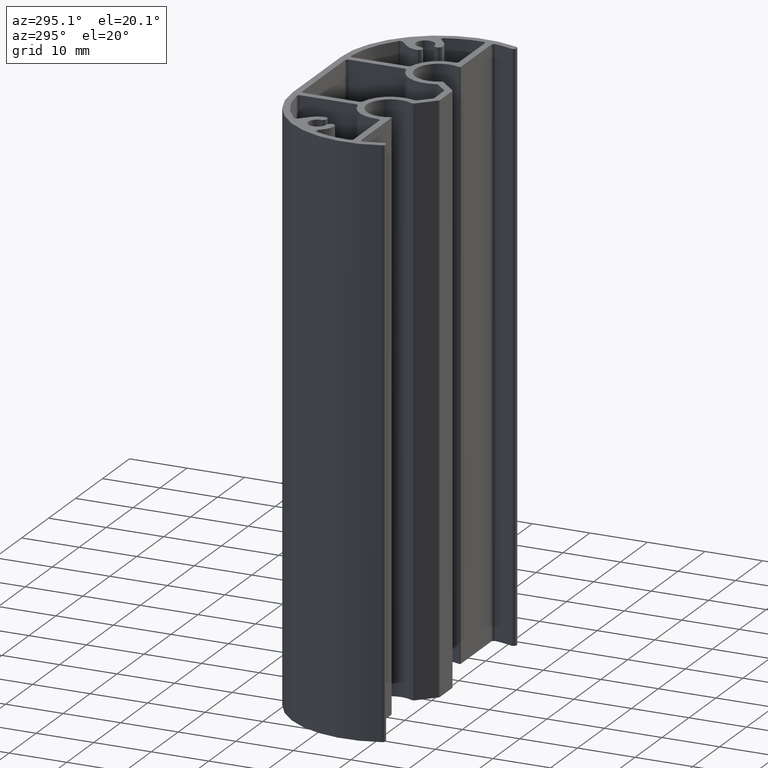
[diagram: clean part render]
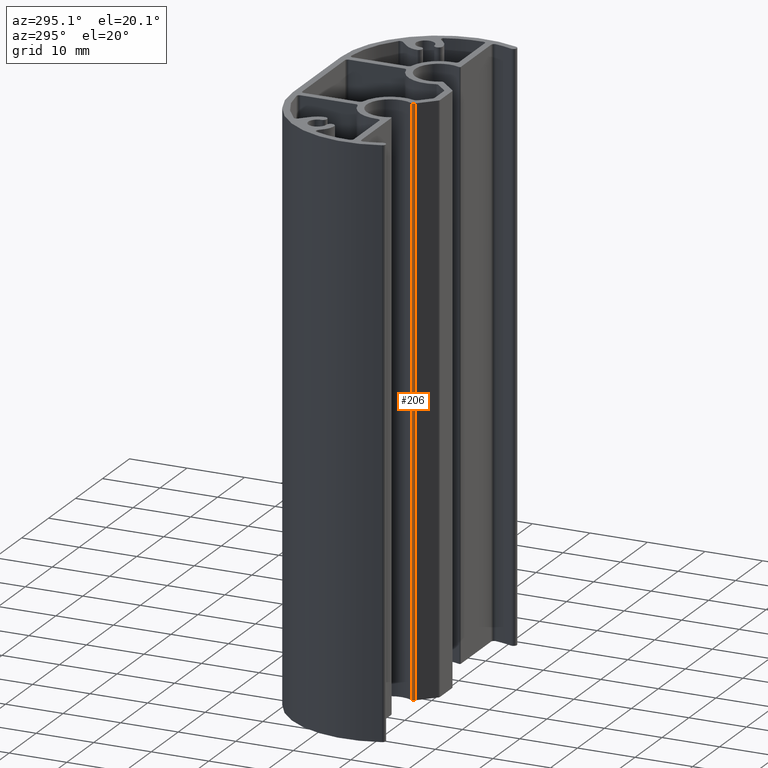
[diagram: same view with one face highlighted and labeled with its STEP entity id]
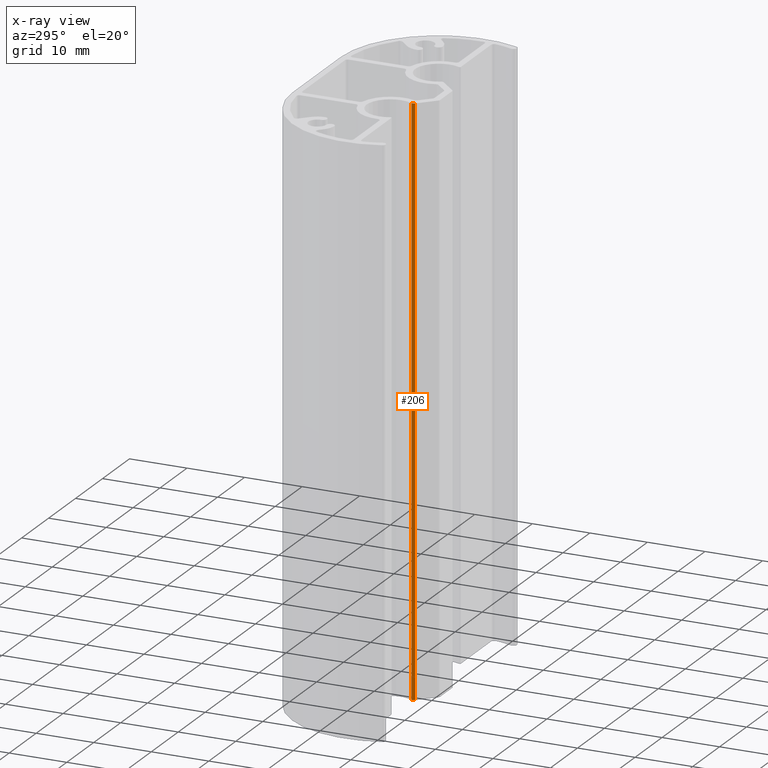
[diagram: x-ray of the same camera — body ghosted, the highlighted face saturated]
A machine part, auxiliary view. The second image highlights one B-rep face of the part: STEP entity #206.
The next image is the same camera in x-ray: the body ghosted, the highlighted face saturated — about 0% of this face is hidden behind the body in this view.
In plain terms, the highlighted cylindrical surface (edge-blend (fillet) strip) has radius 0.5 mm, axis along (0, 0, 1).
Its self-contained STEP definition (entity closure, byte-faithful):
#146=CARTESIAN_POINT('',(-5.422144813530167,-19.002236815324409,100.0));
#147=VERTEX_POINT('',#146);
#155=CARTESIAN_POINT('',(-5.422144813530167,-19.002236815324409,200.0));
#156=VERTEX_POINT('',#155);
#157=CARTESIAN_POINT('',(-5.422144813530167,-19.002236815324409,100.0));
#158=DIRECTION('',(0.0,0.0,1.0));
#159=VECTOR('',#158,100.0);
#160=LINE('',#157,#159);
#161=EDGE_CURVE('',#147,#156,#160,.T.);
#174=CARTESIAN_POINT('',(-4.985821010293876,-19.246412036691368,100.0));
#175=DIRECTION('',(0.0,0.0,1.0));
#176=DIRECTION('',(-0.872647606472260,0.488350442733737,0.0));
#177=AXIS2_PLACEMENT_3D('',#174,#175,#176);
#178=CYLINDRICAL_SURFACE('',#177,0.500000000000185);
#179=CARTESIAN_POINT('',(-5.339374400886300,-19.599965427285383,100.0));
#180=VERTEX_POINT('',#179);
#181=CARTESIAN_POINT('',(-4.985821010293877,-19.246412036691368,100.000000000000060));
#182=DIRECTION('',(0.0,0.0,1.000000000000000));
#183=DIRECTION('',(-0.872647606472260,0.488350442733737,0.0));
#184=AXIS2_PLACEMENT_3D('',#181,#182,#183);
#185=CIRCLE('',#184,0.500000000000185);
#186=EDGE_CURVE('',#147,#180,#185,.T.);
#187=ORIENTED_EDGE('',*,*,#186,.T.);
#188=CARTESIAN_POINT('',(-5.339374400886300,-19.599965427285383,200.0));
#189=VERTEX_POINT('',#188);
#190=CARTESIAN_POINT('',(-5.339374400886300,-19.599965427285383,100.0));
#191=DIRECTION('',(0.0,0.0,1.0));
#192=VECTOR('',#191,100.0);
#193=LINE('',#190,#192);
#194=EDGE_CURVE('',#180,#189,#193,.T.);
#195=ORIENTED_EDGE('',*,*,#194,.T.);
#196=CARTESIAN_POINT('',(-4.985821010293877,-19.246412036691368,200.000000000000110));
#197=DIRECTION('',(0.0,0.0,1.000000000000000));
#198=DIRECTION('',(-0.872647606472260,0.488350442733737,0.0));
#199=AXIS2_PLACEMENT_3D('',#196,#197,#198);
#200=CIRCLE('',#199,0.500000000000185);
#201=EDGE_CURVE('',#156,#189,#200,.T.);
#202=ORIENTED_EDGE('',*,*,#201,.F.);
#203=ORIENTED_EDGE('',*,*,#161,.F.);
#204=EDGE_LOOP('',(#187,#195,#202,#203));
#205=FACE_OUTER_BOUND('',#204,.T.);
#206=ADVANCED_FACE('',(#205),#178,.T.);